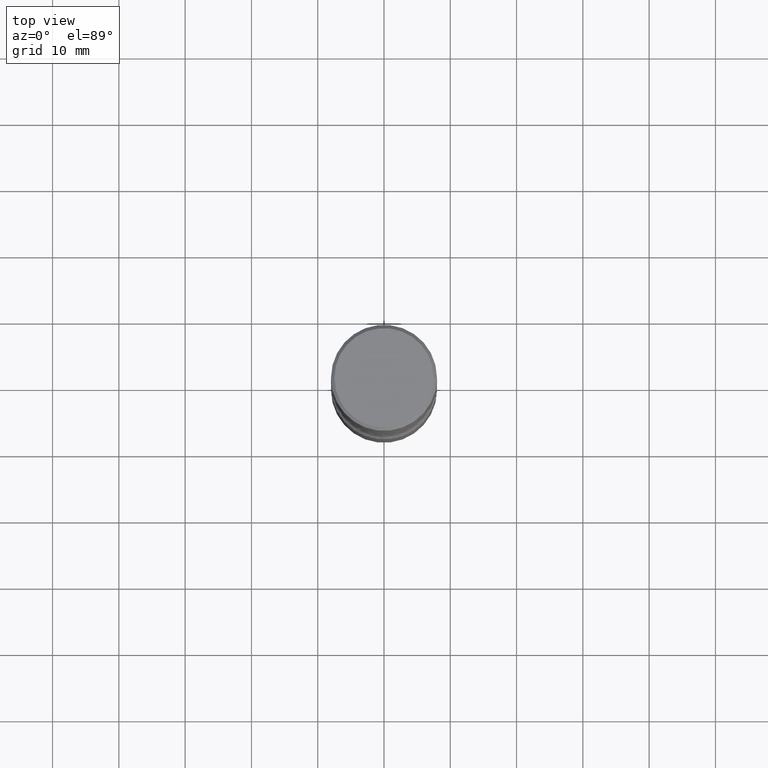
[diagram: clean part render]
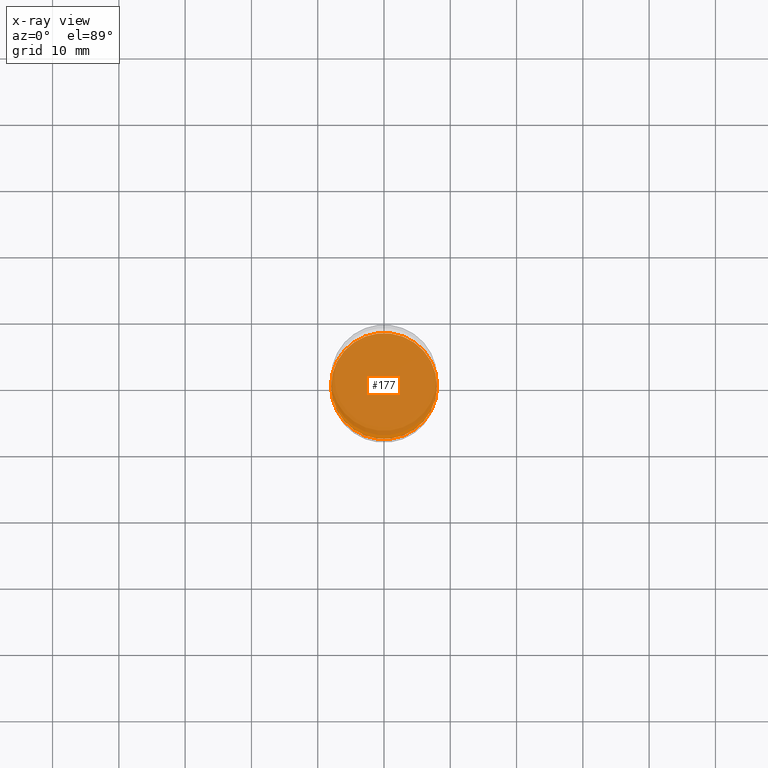
[diagram: x-ray — body ghosted, one internal face saturated and labeled with its STEP entity id]
A machine part, top view, then the same camera in x-ray: the body is ghosted and one INTERNAL B-rep face — a face not visible from any outside direction — is saturated and labeled: STEP entity #177.
In plain terms, the highlighted planar face has unit normal (0, -0, -1).
Its self-contained STEP definition (entity closure, byte-faithful):
#36 = ORIENTED_EDGE ( 'NONE', *, *, #185, .T. ) ;
#50 = CIRCLE ( 'NONE', #188, 0.3149500000000002298 ) ;
#144 = DIRECTION ( 'NONE',  ( 2.438088387897960049E-29, -3.491481338843145188E-15, -1.000000000000000000 ) ) ;
#152 = AXIS2_PLACEMENT_3D ( 'NONE', #290, #144, #441 ) ;
#177 = ADVANCED_FACE ( 'NONE', ( #325 ), #539, .F. ) ;
#185 = EDGE_CURVE ( 'NONE', #390, #538, #50, .T. ) ;
#188 = AXIS2_PLACEMENT_3D ( 'NONE', #202, #486, #190 ) ;
#190 = DIRECTION ( 'NONE',  ( 1.000000000000000000, -6.982962677686264344E-15, 0.000000000000000000 ) ) ;
#202 = CARTESIAN_POINT ( 'NONE',  ( 7.028277348976083234E-29, -1.003451736783520325E-14, -2.874000000000000554 ) ) ;
#216 = EDGE_CURVE ( 'NONE', #538, #390, #504, .T. ) ;
#254 = DIRECTION ( 'NONE',  ( -2.445468806185136597E-29, 3.491481338843145583E-15, 1.000000000000000000 ) ) ;
#271 = ORIENTED_EDGE ( 'NONE', *, *, #216, .T. ) ;
#290 = CARTESIAN_POINT ( 'NONE',  ( 1.050981742056963112E-28, -5.048753828358404860E-15, -2.874000000000000998 ) ) ;
#306 = DIRECTION ( 'NONE',  ( 1.000000000000000000, -6.982962677686264344E-15, 0.000000000000000000 ) ) ;
#307 = CARTESIAN_POINT ( 'NONE',  ( -0.3149500000000002298, -9.928212378922505958E-15, -2.874000000000000554 ) ) ;
#309 = AXIS2_PLACEMENT_3D ( 'NONE', #457, #254, #306 ) ;
#324 = CARTESIAN_POINT ( 'NONE',  ( 0.3149500000000002298, -1.223380146317249313E-14, -2.874000000000000554 ) ) ;
#325 = FACE_OUTER_BOUND ( 'NONE', #488, .T. ) ;
#390 = VERTEX_POINT ( 'NONE', #307 ) ;
#441 = DIRECTION ( 'NONE',  ( -1.000000000000000000, 6.982962677686265922E-15, -4.876176775795935793E-29 ) ) ;
#457 = CARTESIAN_POINT ( 'NONE',  ( 7.028277348976083234E-29, -1.003451736783520325E-14, -2.874000000000000554 ) ) ;
#486 = DIRECTION ( 'NONE',  ( -2.445468806185136597E-29, 3.491481338843145583E-15, 1.000000000000000000 ) ) ;
#488 = EDGE_LOOP ( 'NONE', ( #271, #36 ) ) ;
#504 = CIRCLE ( 'NONE', #309, 0.3149500000000002298 ) ;
#538 = VERTEX_POINT ( 'NONE', #324 ) ;
#539 = PLANE ( 'NONE',  #152 ) ;